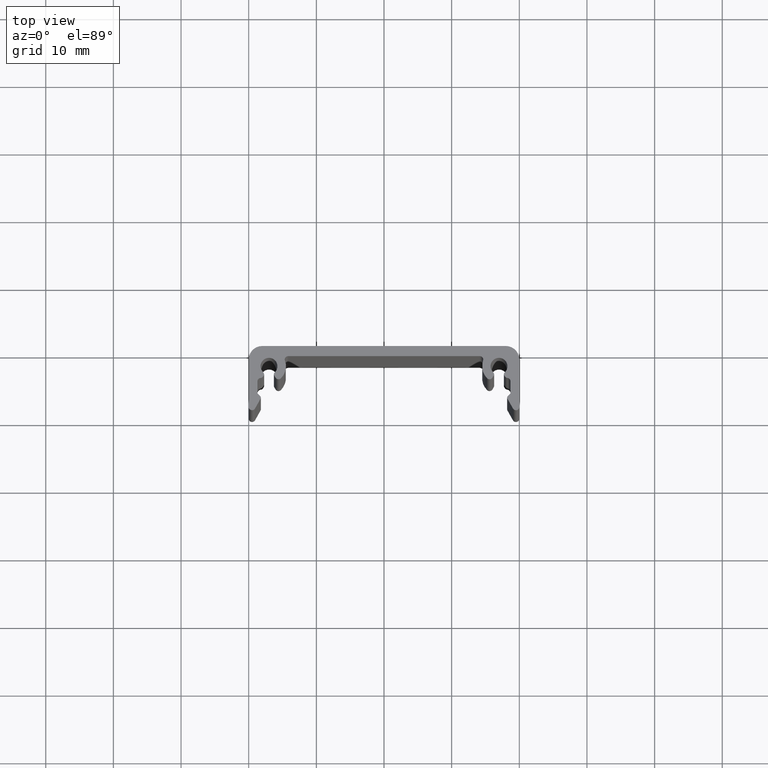
[diagram: clean part render]
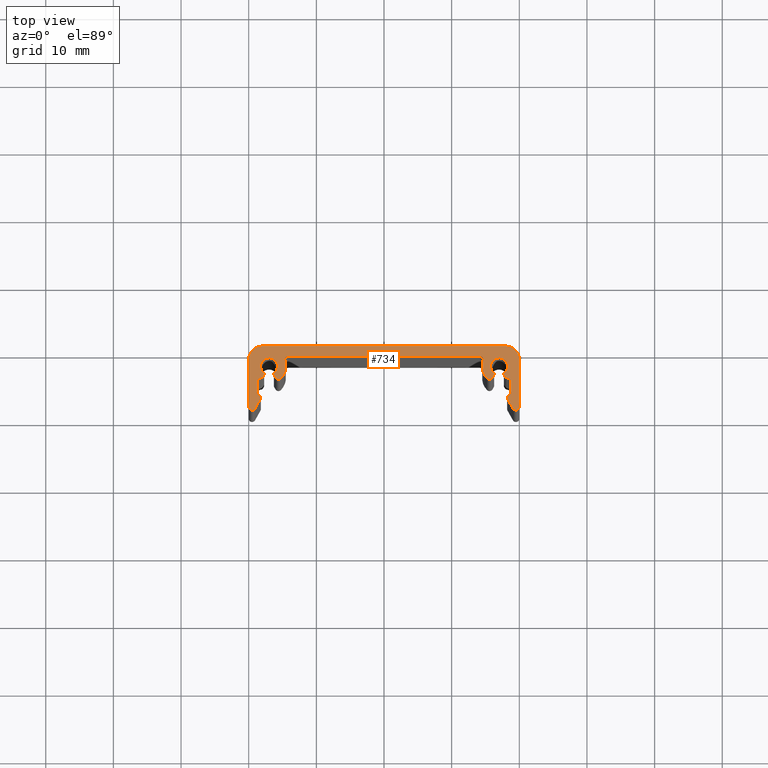
[diagram: same view with one face highlighted and labeled with its STEP entity id]
A machine part, top view. The second image highlights one B-rep face of the part: STEP entity #734.
In plain terms, the highlighted planar face has unit normal (0, 0, 1).
Its self-contained STEP definition (entity closure, byte-faithful):
#30=PLANE('',#818);
#68=FACE_OUTER_BOUND('',#106,.T.);
#106=EDGE_LOOP('',(#639,#640,#641,#642,#643,#644,#645,#646,#647,#648,#649,
#650,#651,#652,#653,#654,#655,#656,#657,#658,#659,#660,#661,#662,#663,#664,
#665,#666,#667,#668,#669,#670,#671,#672,#673,#674));
#111=LINE('',#1073,#175);
#117=LINE('',#1097,#181);
#123=LINE('',#1121,#187);
#128=LINE('',#1139,#192);
#131=LINE('',#1145,#195);
#135=LINE('',#1157,#199);
#139=LINE('',#1169,#203);
#142=LINE('',#1175,#206);
#148=LINE('',#1199,#212);
#153=LINE('',#1217,#217);
#156=LINE('',#1223,#220);
#160=LINE('',#1235,#224);
#164=LINE('',#1247,#228);
#170=LINE('',#1266,#234);
#175=VECTOR('',#845,28.3431457504998);
#181=VECTOR('',#871,0.415801040542399);
#187=VECTOR('',#897,0.19038011818812);
#192=VECTOR('',#916,1.77783328947104);
#195=VECTOR('',#921,0.582842712490683);
#199=VECTOR('',#933,1.68430994774901);
#203=VECTOR('',#945,6.99999999999857);
#206=VECTOR('',#950,0.415801040537529);
#212=VECTOR('',#976,0.190380118148697);
#217=VECTOR('',#995,1.77783328945031);
#220=VECTOR('',#1000,0.582842712467854);
#224=VECTOR('',#1012,1.68430994772338);
#228=VECTOR('',#1024,6.99999999998679);
#234=VECTOR('',#1046,36.);
#235=CIRCLE('',#738,0.5);
#237=CIRCLE('',#741,2.50000000000608);
#239=CIRCLE('',#744,0.5);
#241=CIRCLE('',#748,0.5);
#243=CIRCLE('',#751,2.50000000000608);
#245=CIRCLE('',#754,0.5);
#247=CIRCLE('',#758,0.299999999999853);
#249=CIRCLE('',#761,1.24999999999524);
#251=CIRCLE('',#764,0.299999999999853);
#253=CIRCLE('',#768,0.499999999999971);
#255=CIRCLE('',#771,0.5);
#257=CIRCLE('',#776,0.299999999999853);
#259=CIRCLE('',#780,0.5);
#261=CIRCLE('',#785,0.299999999999853);
#263=CIRCLE('',#788,1.24999999999524);
#265=CIRCLE('',#791,0.299999999999853);
#267=CIRCLE('',#795,0.5);
#269=CIRCLE('',#798,0.5);
#271=CIRCLE('',#803,0.299999999999853);
#273=CIRCLE('',#807,0.5);
#275=CIRCLE('',#811,2.);
#277=CIRCLE('',#814,2.);
#279=VERTEX_POINT('',#1051);
#280=VERTEX_POINT('',#1052);
#283=VERTEX_POINT('',#1060);
#285=VERTEX_POINT('',#1066);
#287=VERTEX_POINT('',#1072);
#289=VERTEX_POINT('',#1078);
#291=VERTEX_POINT('',#1084);
#293=VERTEX_POINT('',#1090);
#295=VERTEX_POINT('',#1096);
#297=VERTEX_POINT('',#1102);
#299=VERTEX_POINT('',#1108);
#301=VERTEX_POINT('',#1114);
#303=VERTEX_POINT('',#1120);
#305=VERTEX_POINT('',#1126);
#307=VERTEX_POINT('',#1132);
#309=VERTEX_POINT('',#1138);
#311=VERTEX_POINT('',#1144);
#313=VERTEX_POINT('',#1150);
#315=VERTEX_POINT('',#1156);
#317=VERTEX_POINT('',#1162);
#319=VERTEX_POINT('',#1168);
#321=VERTEX_POINT('',#1174);
#323=VERTEX_POINT('',#1180);
#325=VERTEX_POINT('',#1186);
#327=VERTEX_POINT('',#1192);
#329=VERTEX_POINT('',#1198);
#331=VERTEX_POINT('',#1204);
#333=VERTEX_POINT('',#1210);
#335=VERTEX_POINT('',#1216);
#337=VERTEX_POINT('',#1222);
#339=VERTEX_POINT('',#1228);
#341=VERTEX_POINT('',#1234);
#343=VERTEX_POINT('',#1240);
#345=VERTEX_POINT('',#1246);
#347=VERTEX_POINT('',#1252);
#349=VERTEX_POINT('',#1258);
#351=EDGE_CURVE('',#279,#280,#235,.T.);
#355=EDGE_CURVE('',#280,#283,#237,.T.);
#358=EDGE_CURVE('',#283,#285,#239,.T.);
#361=EDGE_CURVE('',#285,#287,#111,.T.);
#364=EDGE_CURVE('',#287,#289,#241,.T.);
#367=EDGE_CURVE('',#289,#291,#243,.T.);
#370=EDGE_CURVE('',#291,#293,#245,.T.);
#373=EDGE_CURVE('',#293,#295,#117,.T.);
#376=EDGE_CURVE('',#295,#297,#247,.T.);
#379=EDGE_CURVE('',#297,#299,#249,.T.);
#382=EDGE_CURVE('',#299,#301,#251,.T.);
#385=EDGE_CURVE('',#301,#303,#123,.T.);
#388=EDGE_CURVE('',#303,#305,#253,.T.);
#391=EDGE_CURVE('',#305,#307,#255,.T.);
#394=EDGE_CURVE('',#307,#309,#128,.T.);
#397=EDGE_CURVE('',#309,#311,#131,.T.);
#400=EDGE_CURVE('',#311,#313,#257,.T.);
#403=EDGE_CURVE('',#313,#315,#135,.T.);
#406=EDGE_CURVE('',#315,#317,#259,.T.);
#409=EDGE_CURVE('',#317,#319,#139,.T.);
#412=EDGE_CURVE('',#321,#279,#142,.T.);
#415=EDGE_CURVE('',#323,#321,#261,.T.);
#418=EDGE_CURVE('',#325,#323,#263,.T.);
#421=EDGE_CURVE('',#327,#325,#265,.T.);
#424=EDGE_CURVE('',#329,#327,#148,.T.);
#427=EDGE_CURVE('',#331,#329,#267,.T.);
#430=EDGE_CURVE('',#333,#331,#269,.T.);
#433=EDGE_CURVE('',#335,#333,#153,.T.);
#436=EDGE_CURVE('',#337,#335,#156,.T.);
#439=EDGE_CURVE('',#339,#337,#271,.T.);
#442=EDGE_CURVE('',#341,#339,#160,.T.);
#445=EDGE_CURVE('',#343,#341,#273,.T.);
#448=EDGE_CURVE('',#345,#343,#164,.T.);
#451=EDGE_CURVE('',#347,#345,#275,.T.);
#454=EDGE_CURVE('',#319,#349,#277,.T.);
#458=EDGE_CURVE('',#347,#349,#170,.T.);
#639=ORIENTED_EDGE('',*,*,#454,.T.);
#640=ORIENTED_EDGE('',*,*,#458,.F.);
#641=ORIENTED_EDGE('',*,*,#451,.T.);
#642=ORIENTED_EDGE('',*,*,#448,.T.);
#643=ORIENTED_EDGE('',*,*,#445,.T.);
#644=ORIENTED_EDGE('',*,*,#442,.T.);
#645=ORIENTED_EDGE('',*,*,#439,.T.);
#646=ORIENTED_EDGE('',*,*,#436,.T.);
#647=ORIENTED_EDGE('',*,*,#433,.T.);
#648=ORIENTED_EDGE('',*,*,#430,.T.);
#649=ORIENTED_EDGE('',*,*,#427,.T.);
#650=ORIENTED_EDGE('',*,*,#424,.T.);
#651=ORIENTED_EDGE('',*,*,#421,.T.);
#652=ORIENTED_EDGE('',*,*,#418,.T.);
#653=ORIENTED_EDGE('',*,*,#415,.T.);
#654=ORIENTED_EDGE('',*,*,#412,.T.);
#655=ORIENTED_EDGE('',*,*,#351,.T.);
#656=ORIENTED_EDGE('',*,*,#355,.T.);
#657=ORIENTED_EDGE('',*,*,#358,.T.);
#658=ORIENTED_EDGE('',*,*,#361,.T.);
#659=ORIENTED_EDGE('',*,*,#364,.T.);
#660=ORIENTED_EDGE('',*,*,#367,.T.);
#661=ORIENTED_EDGE('',*,*,#370,.T.);
#662=ORIENTED_EDGE('',*,*,#373,.T.);
#663=ORIENTED_EDGE('',*,*,#376,.T.);
#664=ORIENTED_EDGE('',*,*,#379,.T.);
#665=ORIENTED_EDGE('',*,*,#382,.T.);
#666=ORIENTED_EDGE('',*,*,#385,.T.);
#667=ORIENTED_EDGE('',*,*,#388,.T.);
#668=ORIENTED_EDGE('',*,*,#391,.T.);
#669=ORIENTED_EDGE('',*,*,#394,.T.);
#670=ORIENTED_EDGE('',*,*,#397,.T.);
#671=ORIENTED_EDGE('',*,*,#400,.T.);
#672=ORIENTED_EDGE('',*,*,#403,.T.);
#673=ORIENTED_EDGE('',*,*,#406,.T.);
#674=ORIENTED_EDGE('',*,*,#409,.T.);
#734=ADVANCED_FACE('',(#68),#30,.T.);
#738=AXIS2_PLACEMENT_3D('',#1053,#823,#824);
#741=AXIS2_PLACEMENT_3D('',#1061,#831,#832);
#744=AXIS2_PLACEMENT_3D('',#1067,#838,#839);
#748=AXIS2_PLACEMENT_3D('',#1079,#850,#851);
#751=AXIS2_PLACEMENT_3D('',#1085,#857,#858);
#754=AXIS2_PLACEMENT_3D('',#1091,#864,#865);
#758=AXIS2_PLACEMENT_3D('',#1103,#876,#877);
#761=AXIS2_PLACEMENT_3D('',#1109,#883,#884);
#764=AXIS2_PLACEMENT_3D('',#1115,#890,#891);
#768=AXIS2_PLACEMENT_3D('',#1127,#902,#903);
#771=AXIS2_PLACEMENT_3D('',#1133,#909,#910);
#776=AXIS2_PLACEMENT_3D('',#1151,#926,#927);
#780=AXIS2_PLACEMENT_3D('',#1163,#938,#939);
#785=AXIS2_PLACEMENT_3D('',#1181,#955,#956);
#788=AXIS2_PLACEMENT_3D('',#1187,#962,#963);
#791=AXIS2_PLACEMENT_3D('',#1193,#969,#970);
#795=AXIS2_PLACEMENT_3D('',#1205,#981,#982);
#798=AXIS2_PLACEMENT_3D('',#1211,#988,#989);
#803=AXIS2_PLACEMENT_3D('',#1229,#1005,#1006);
#807=AXIS2_PLACEMENT_3D('',#1241,#1017,#1018);
#811=AXIS2_PLACEMENT_3D('',#1253,#1029,#1030);
#814=AXIS2_PLACEMENT_3D('',#1259,#1036,#1037);
#818=AXIS2_PLACEMENT_3D('',#1267,#1047,#1048);
#823=DIRECTION('center_axis',(0.,0.,1.));
#824=DIRECTION('ref_axis',(0.86602540378473,0.499999999999496,0.));
#831=DIRECTION('center_axis',(0.,0.,1.));
#832=DIRECTION('ref_axis',(-0.70062926923846,0.713525491546295,0.));
#838=DIRECTION('center_axis',(0.,0.,-1.));
#839=DIRECTION('ref_axis',(4.44089209850064E-15,1.,0.));
#845=DIRECTION('',(1.,-2.64794448454392E-14,0.));
#850=DIRECTION('center_axis',(0.,0.,-1.));
#851=DIRECTION('ref_axis',(0.942809041595373,-0.333333333295689,0.));
#857=DIRECTION('center_axis',(0.,0.,1.));
#858=DIRECTION('ref_axis',(0.942809041595373,-0.333333333295689,0.));
#864=DIRECTION('center_axis',(0.,0.,1.));
#865=DIRECTION('ref_axis',(0.700629269209054,0.713525491575169,0.));
#871=DIRECTION('',(0.49999999999958,0.866025403784681,0.));
#876=DIRECTION('center_axis',(0.,0.,1.));
#877=DIRECTION('ref_axis',(-0.866025403784678,0.499999999999585,0.));
#883=DIRECTION('center_axis',(0.,0.,-1.));
#884=DIRECTION('ref_axis',(0.658163185407506,-0.752875302672524,0.));
#890=DIRECTION('center_axis',(0.,0.,1.));
#891=DIRECTION('ref_axis',(0.658163185407506,-0.752875302672524,0.));
#897=DIRECTION('',(0.499999999999504,-0.866025403784725,0.));
#902=DIRECTION('center_axis',(0.,0.,1.));
#903=DIRECTION('ref_axis',(0.866025403784728,0.499999999999498,0.));
#909=DIRECTION('center_axis',(0.,0.,-1.));
#910=DIRECTION('ref_axis',(1.,0.,0.));
#916=DIRECTION('',(0.,-1.,0.));
#921=DIRECTION('',(-0.707106781186746,-0.707106781186349,0.));
#926=DIRECTION('center_axis',(0.,0.,1.));
#927=DIRECTION('ref_axis',(0.707106781186355,-0.70710678118674,0.));
#933=DIRECTION('',(0.490218619946178,-0.871599509326425,0.));
#938=DIRECTION('center_axis',(0.,0.,1.));
#939=DIRECTION('ref_axis',(0.871599509326422,0.490218619946183,0.));
#945=DIRECTION('',(0.,1.,0.));
#950=DIRECTION('',(0.499999999999509,-0.866025403784722,0.));
#955=DIRECTION('center_axis',(0.,0.,1.));
#956=DIRECTION('ref_axis',(0.658163185457281,-0.752875302629011,0.));
#962=DIRECTION('center_axis',(0.,0.,-1.));
#963=DIRECTION('ref_axis',(0.658163185457277,-0.752875302629014,0.));
#969=DIRECTION('center_axis',(0.,0.,1.));
#970=DIRECTION('ref_axis',(-0.866025403784684,0.499999999999575,0.));
#976=DIRECTION('',(0.499999999999588,0.866025403784676,0.));
#981=DIRECTION('center_axis',(0.,0.,1.));
#982=DIRECTION('ref_axis',(-0.0885480772385439,0.996071904039742,0.));
#988=DIRECTION('center_axis',(0.,0.,-1.));
#989=DIRECTION('ref_axis',(-0.0885480772385483,0.996071904039742,0.));
#995=DIRECTION('',(0.,1.,0.));
#1000=DIRECTION('',(-0.707106781186349,0.707106781186746,0.));
#1005=DIRECTION('center_axis',(0.,0.,1.));
#1006=DIRECTION('ref_axis',(-0.871599509326303,0.490218619946395,0.));
#1012=DIRECTION('',(0.490218619946385,0.871599509326309,0.));
#1017=DIRECTION('center_axis',(0.,0.,1.));
#1018=DIRECTION('ref_axis',(1.,0.,0.));
#1024=DIRECTION('',(-6.34413156929858E-16,-1.,0.));
#1029=DIRECTION('center_axis',(0.,0.,1.));
#1030=DIRECTION('ref_axis',(-2.22044604925032E-15,-1.,0.));
#1036=DIRECTION('center_axis',(0.,0.,1.));
#1037=DIRECTION('ref_axis',(-1.,0.,0.));
#1046=DIRECTION('',(1.,4.33257765707378E-16,0.));
#1047=DIRECTION('center_axis',(0.,0.,1.));
#1048=DIRECTION('ref_axis',(1.,0.,0.));
#1051=CARTESIAN_POINT('',(-16.0317541634156,-4.67705098307242,100.));
#1052=CARTESIAN_POINT('',(-15.248426826904,-4.78381372884582,100.));
#1053=CARTESIAN_POINT('Origin',(-15.5987414615232,-4.42705098307268,100.));
#1060=CARTESIAN_POINT('',(-14.6429773960383,-2.16666666665509,100.));
#1061=CARTESIAN_POINT('Origin',(-17.0000000000044,-2.99999999997575,100.));
#1066=CARTESIAN_POINT('',(-14.1715728752463,-1.49999999999136,100.));
#1067=CARTESIAN_POINT('Origin',(-14.1715728752463,-1.99999999999136,100.));
#1072=CARTESIAN_POINT('',(14.1715728752536,-1.49999999999211,100.));
#1073=CARTESIAN_POINT('',(-7.08578643762307,-1.49999999999155,100.));
#1078=CARTESIAN_POINT('',(14.6429773960512,-2.1666666666392,100.));
#1079=CARTESIAN_POINT('Origin',(14.1715728752535,-1.99999999999136,100.));
#1084=CARTESIAN_POINT('',(15.2484268270185,-4.78381372882271,100.));
#1085=CARTESIAN_POINT('Origin',(17.0000000000454,-2.99999999988045,100.));
#1090=CARTESIAN_POINT('',(16.0317541635154,-4.67705098303492,100.));
#1091=CARTESIAN_POINT('Origin',(15.598741461623,-4.42705098303513,100.));
#1096=CARTESIAN_POINT('',(16.2396546837864,-4.3169567190051,100.));
#1097=CARTESIAN_POINT('',(13.8496112044016,-8.45663345760287,100.));
#1102=CARTESIAN_POINT('',(16.1772960182764,-3.94109412820634,100.));
#1103=CARTESIAN_POINT('Origin',(15.9798470626511,-4.1669567190053,100.));
#1108=CARTESIAN_POINT('',(17.8227039818016,-3.94109412821751,100.));
#1109=CARTESIAN_POINT('Origin',(17.0000000000454,-2.99999999988045,100.));
#1114=CARTESIAN_POINT('',(17.7603453162885,-4.31695671901894,100.));
#1115=CARTESIAN_POINT('Origin',(18.0201529374238,-4.16695671901916,100.));
#1120=CARTESIAN_POINT('',(17.8555353753825,-4.48183073774539,100.));
#1121=CARTESIAN_POINT('',(15.7964385355332,-0.915370393417217,100.));
#1126=CARTESIAN_POINT('',(18.2442740386369,-4.72986668976386,100.));
#1127=CARTESIAN_POINT('Origin',(18.2885480772748,-4.23183073774564,100.));
#1132=CARTESIAN_POINT('',(18.699999999999,-5.22790264178207,100.));
#1133=CARTESIAN_POINT('Origin',(18.199999999999,-5.22790264178207,100.));
#1138=CARTESIAN_POINT('',(18.699999999999,-7.00573593125311,100.));
#1139=CARTESIAN_POINT('',(18.699999999999,-5.36395132089103,100.));
#1144=CARTESIAN_POINT('',(18.2878679656315,-7.41786796562031,100.));
#1145=CARTESIAN_POINT('',(14.4014339828099,-11.3043019484398,100.));
#1150=CARTESIAN_POINT('',(18.2385201471895,-7.77706558596001,100.));
#1151=CARTESIAN_POINT('Origin',(18.4999999999873,-7.62999999997623,100.));
#1156=CARTESIAN_POINT('',(19.0642002453367,-9.24510930997166,100.));
#1157=CARTESIAN_POINT('',(15.560565776616,-3.01571295588907,100.));
#1162=CARTESIAN_POINT('',(19.9999999999999,-8.99999999999857,100.));
#1163=CARTESIAN_POINT('Origin',(19.4999999999999,-8.99999999999857,100.));
#1168=CARTESIAN_POINT('',(19.9999999999999,-2.,100.));
#1169=CARTESIAN_POINT('',(19.9999999999999,-7.24999999999928,100.));
#1174=CARTESIAN_POINT('',(-16.2396546836842,-4.3169567190468,100.));
#1175=CARTESIAN_POINT('',(-13.9535614644573,-8.2765863255916,100.));
#1180=CARTESIAN_POINT('',(-16.177296018186,-3.94109412825844,100.));
#1181=CARTESIAN_POINT('Origin',(-15.9798470625489,-4.16695671904703,100.));
#1186=CARTESIAN_POINT('',(-17.8227039817763,-3.94109412829919,100.));
#1187=CARTESIAN_POINT('Origin',(-17.0000000000044,-2.99999999997575,100.));
#1192=CARTESIAN_POINT('',(-17.7603453162669,-4.31695671909737,100.));
#1193=CARTESIAN_POINT('Origin',(-18.0201529374022,-4.16695671909757,100.));
#1198=CARTESIAN_POINT('',(-17.8555353753412,-4.48183073778967,100.));
#1199=CARTESIAN_POINT('',(-15.8440335650337,-0.997807402816582,100.));
#1204=CARTESIAN_POINT('',(-18.2442740386142,-4.72986668980975,100.));
#1205=CARTESIAN_POINT('Origin',(-18.2885480772335,-4.23183073778988,100.));
#1210=CARTESIAN_POINT('',(-18.6999999999949,-5.22790264182962,100.));
#1211=CARTESIAN_POINT('Origin',(-18.199999999995,-5.22790264182962,100.));
#1216=CARTESIAN_POINT('',(-18.6999999999949,-7.00573593127993,100.));
#1217=CARTESIAN_POINT('',(-18.6999999999949,-6.25286796563996,100.));
#1222=CARTESIAN_POINT('',(-18.2878679656439,-7.41786796563122,100.));
#1223=CARTESIAN_POINT('',(-14.1953679656433,-11.5103679656341,100.));
#1228=CARTESIAN_POINT('',(-18.238520147202,-7.77706558597087,100.));
#1229=CARTESIAN_POINT('Origin',(-18.4999999999998,-7.62999999998702,100.));
#1234=CARTESIAN_POINT('',(-19.064200245337,-9.24510930995999,100.));
#1235=CARTESIAN_POINT('',(-15.9734058256901,-3.7497348178868,100.));
#1240=CARTESIAN_POINT('',(-20.0000000000001,-8.9999999999868,100.));
#1241=CARTESIAN_POINT('Origin',(-19.5000000000001,-8.9999999999868,100.));
#1246=CARTESIAN_POINT('',(-20.0000000000001,-2.,100.));
#1247=CARTESIAN_POINT('',(-20.0000000000001,-3.74999999999999,100.));
#1252=CARTESIAN_POINT('',(-18.0000000000001,5.55111512312578E-16,100.));
#1253=CARTESIAN_POINT('Origin',(-18.0000000000001,-2.,100.));
#1258=CARTESIAN_POINT('',(17.9999999999999,7.21644966006352E-15,100.));
#1259=CARTESIAN_POINT('Origin',(17.9999999999999,-2.,100.));
#1266=CARTESIAN_POINT('',(10.25,8.88178419700125E-15,100.));
#1267=CARTESIAN_POINT('Origin',(4.44089209850063E-15,-5.49999999999999,
100.));